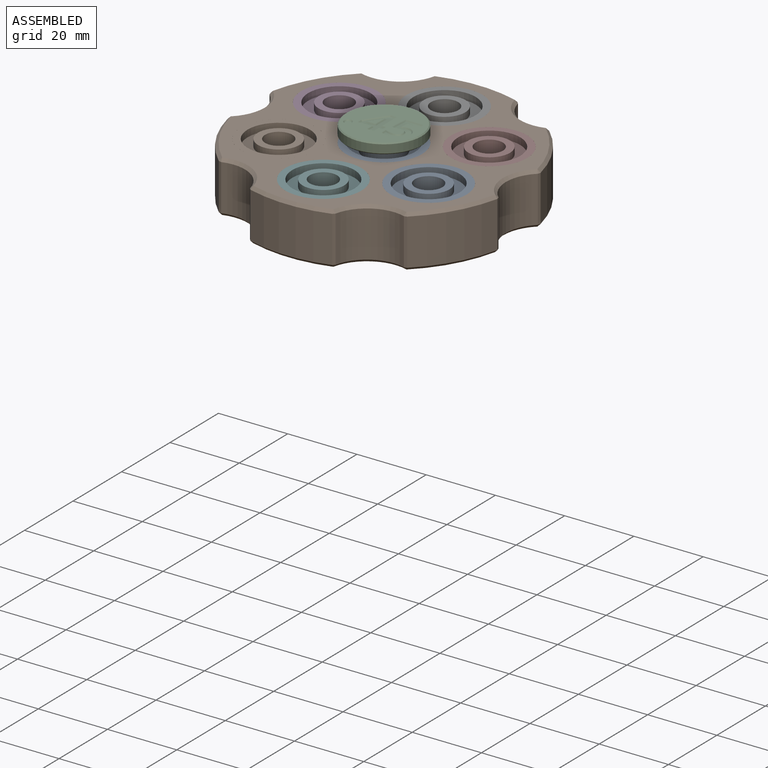
[diagram: assembled view]
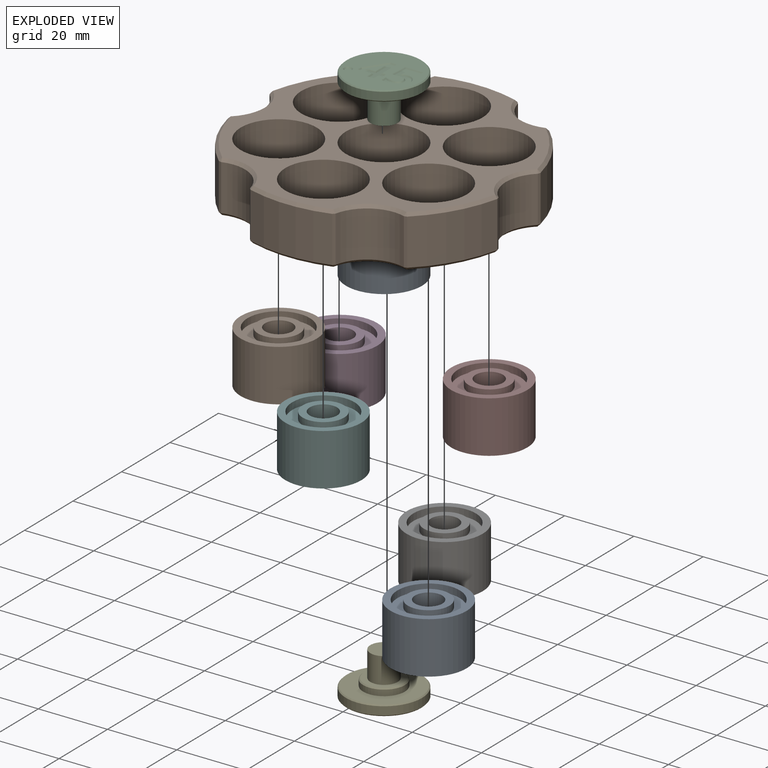
[diagram: exploded view]
GUIDED TOUR — MATED ASSEMBLY (Onshape document 44c54bfcdeca1c4b08606465, AutoMate assembly 44c54bfcdeca1c4b08606465_a4b817ca77fc673c21755fd8_5babd0ef32a0973edb12c5f9_default)

This assembly has 10 components, labeled P0..P9 below (a component is one placed occurrence of a part; the same part can appear more than once), held together by 9 mates. A mate is a constraint between two components; its type names the relative motion it leaves free:
  FASTENED — locks the two components together rigidly (no relative motion),
  REVOLUTE — leaves rotation about the listed axis free (a hinge).
Axis/direction vectors are unit vectors and 'through' points are millimeter coordinates, both in the assembly's world frame.

MATES
  1. FASTENED "Fastened 2": P1 <-> P9, direction (0.000, 0.000, -1.000) through (-76.33, -23.17, 4.27) mm
  2. FASTENED "Fastened 8": P4 <-> P2, direction (0.000, 0.000, 1.000) through (-54.68, -10.67, 4.27) mm
  3. FASTENED "Fastened 1": P3 <-> P9, direction (0.000, 0.000, -1.000) through (-76.33, 1.83, 4.27) mm
  4. FASTENED "Fastened 4": P8 <-> P9, direction (0.000, 0.000, -1.000) through (-33.03, -23.17, 4.27) mm
  5. FASTENED "Fastened 5": P7 <-> P9, direction (0.000, 0.000, -1.000) through (-33.03, 1.83, 4.27) mm
  6. REVOLUTE "Revolute 1": P9 <-> P0, axis (0.000, 0.000, -1.000) through (-54.68, -10.67, 4.27) mm
  7. FASTENED "Fastened 7": P2 <-> P0, direction (0.000, 0.000, -1.000) through (-54.68, -10.67, 4.27) mm
  8. FASTENED "Fastened 6": P6 <-> P9, direction (0.000, 0.000, -1.000) through (-54.68, 14.33, 4.27) mm
  9. FASTENED "Fastened 3": P5 <-> P9, direction (0.000, 0.000, -1.000) through (-54.68, -35.67, 4.27) mm

ASSEMBLY ORDER
  1. P9 — the base component [order heuristic]
  2. P0 [order heuristic]
  3. P1 [order heuristic]
  4. P3 [order heuristic]
  5. P5 [order heuristic]
  6. P6 [order heuristic]
  7. P7 [order heuristic]
  8. P8 [order heuristic]
  9. P2 [order heuristic]
  10. P4 [order heuristic]
Order-tag legend:
  [order heuristic] — this assembly is geometrically interlocked (no collision-free removal order exists), so components are listed in mate-graph order; insertion feasibility is not verified.

Of the 10 components, 7 carry the full construction recipe — the FeatureScript program that regenerates the part's solid from scratch; the rest are supplied as boundary geometry only.
Each toured component is shown spotlighted twice — in the assembled view, then in the exploded view, where a leader line traces a displaced component back to its assembled socket (saturated green if recipe-attached, orange if geometry-only; every other component desaturated gray) — followed by its recipe or geometry summary and the mates that hold it.
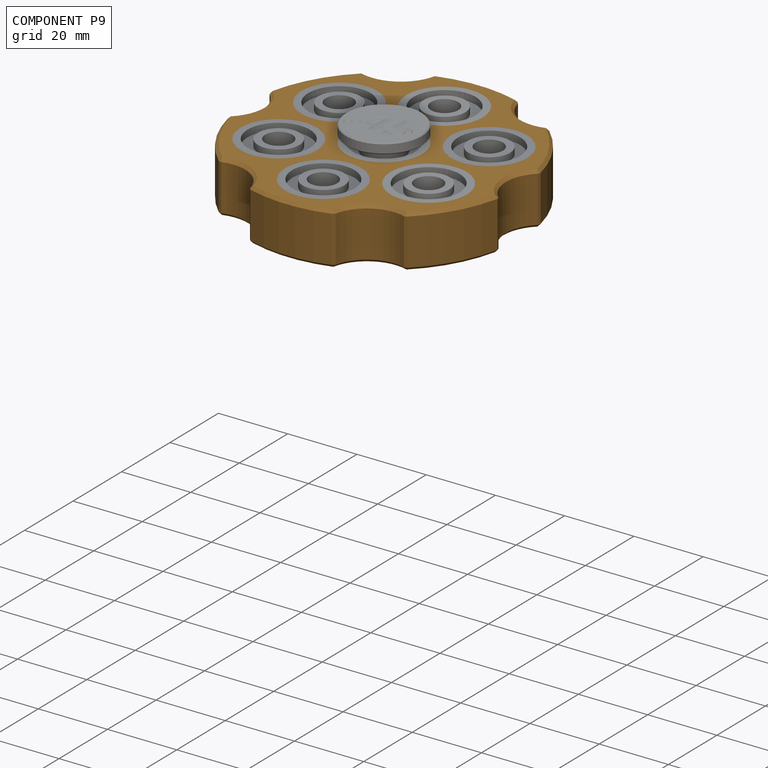
[diagram: component P9 — assembled]
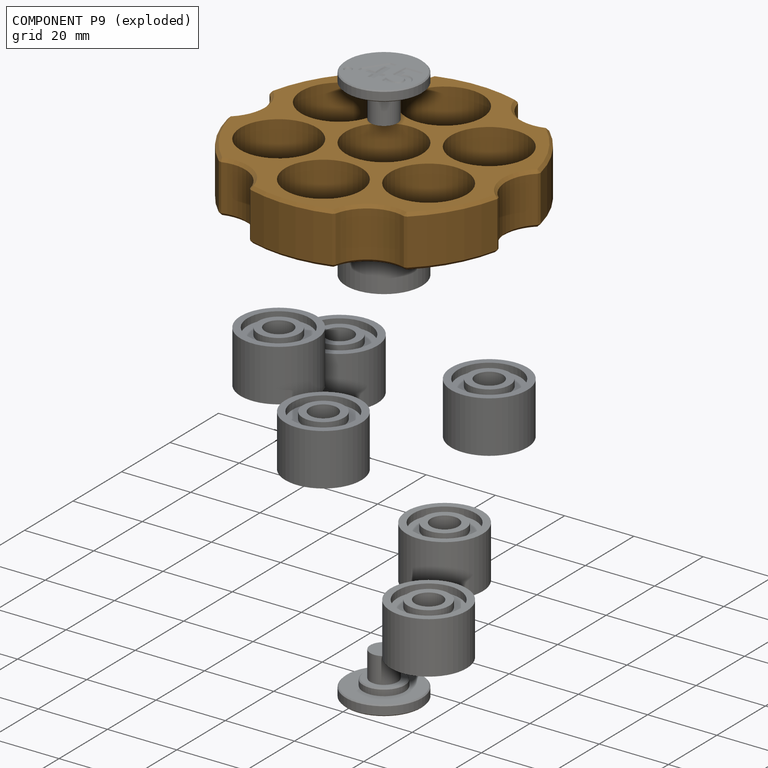
[diagram: component P9 — exploded]
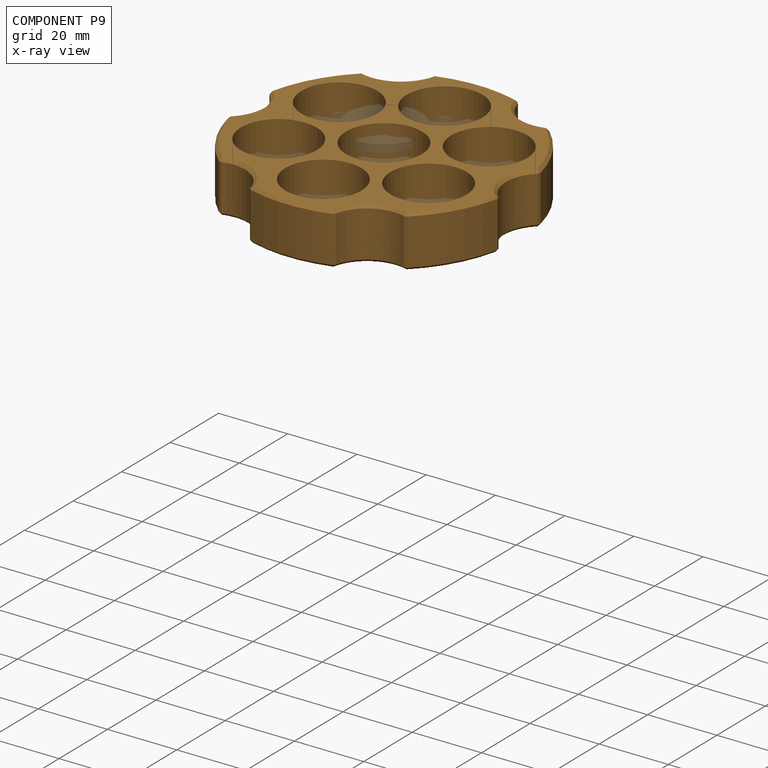
[diagram: component P9 — x-ray view]
COMPONENT P9 — geometry summary (no construction recipe available for this part):
  bounding box: 80.0 x 78.0 x 15.0 mm
  B-rep topology: 1 solid, 81 faces, 330 edges
  volume: 30258 mm^3 (32% of its bounding box)
  symmetry: 2-fold rotationally symmetric about the x axis; 2-fold rotationally symmetric about the y axis; 6-fold rotationally symmetric about the z axis; mirror-symmetric across its x mid-plane, y mid-plane, z mid-plane
Held by: FASTENED mate "Fastened 2" to P1; FASTENED mate "Fastened 1" to P3; FASTENED mate "Fastened 4" to P8; FASTENED mate "Fastened 5" to P7; REVOLUTE mate "Revolute 1" to P0; FASTENED mate "Fastened 6" to P6; FASTENED mate "Fastened 3" to P5.
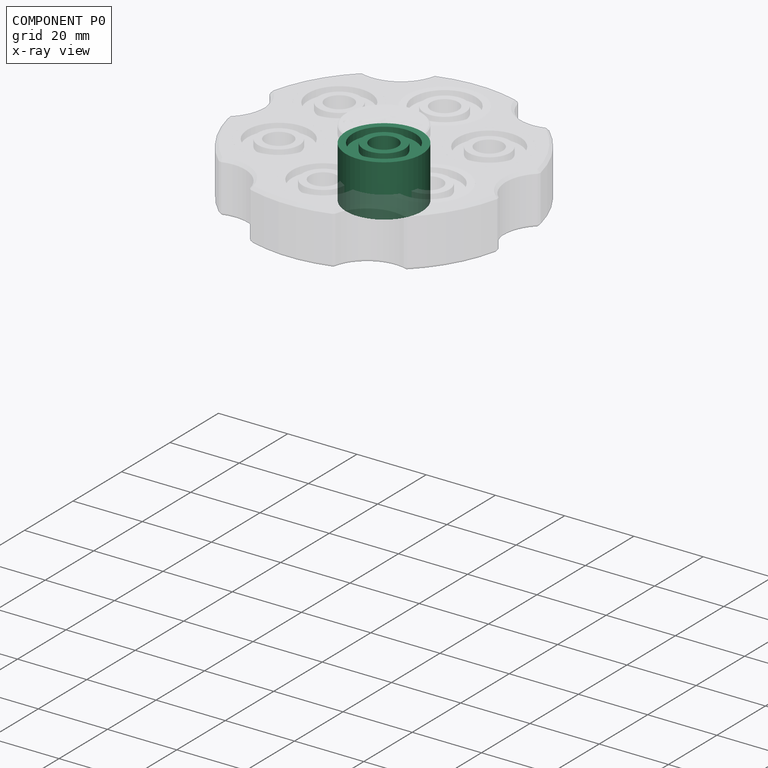
[diagram: component P0 — x-ray view]
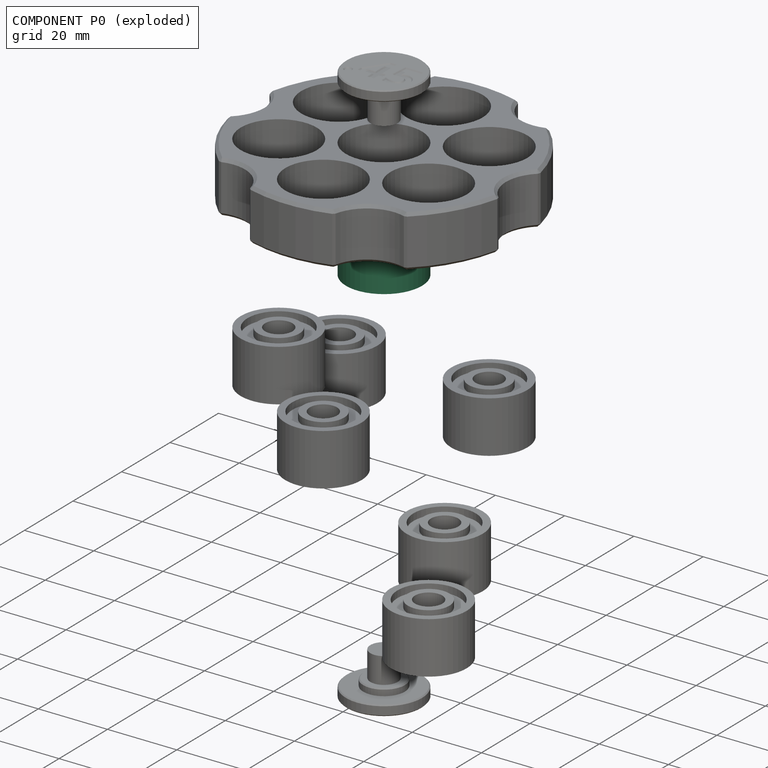
[diagram: component P0 — exploded]
COMPONENT P0 — recipe-attached (CADFS 00522464, mesh-verified: the recipe's output STEP matches this component's geometry to below the mesh-comparison resolution (tessellation chordal tolerance ~0.0518 mm)).
Held by: REVOLUTE mate "Revolute 1" to P9; FASTENED mate "Fastened 7" to P2.
Construction recipe (FeatureScript — the CAD program that rebuilds this solid; sketch coordinates are in the units given by the * unit suffixes, e.g. mm):

FeatureScript 1511;
import(path : "onshape/std/geometry.fs", version : "1511.0");
import(path : "onshape/std/common.fs", version : "1511.0");
const mm = millimeter;
const VERTEX = EntityType.VERTEX;
const EDGE = EntityType.EDGE;
const FACE = EntityType.FACE;
const BODY = EntityType.BODY;
function v(x, y){return vector(x, y);}
function OD(order){return orderDisambiguation(order);}
function OSD(set){return originalSetDisambiguation(set);}
function TD(topology){return topologyDisambiguation(topology);}
function TDD(query){return trueDependencyDisambiguation(query);}
function sQuery(a, b, c) {return sketchEntityQuery(a, b, c);}

annotation { "Feature Type Name" : "Feature", "Feature Type Description" : "" }
export const myFeature = defineFeature(function(context is Context, id is Id, definition is map)
    precondition{}
    {
        {
            var Q0;
            Q0=qCreatedBy(makeId("Front.planeOp"),FACE);
            var sketch = newSketch(context, id + "F0", { "sketchPlane" : qUnion([Q0])});
            skLineSegment(sketch, "E0.bottom", {"start": v(0, -7.5) * mm, "end": v(-6, -7.5) * mm});
            skLineSegment(sketch, "E0.top", {"start": v(-3.95, 7.5) * mm, "end": v(-6, 7.5) * mm});
            skLineSegment(sketch, "E0.left", {"start": v(0, -7.5) * mm, "end": v(0, 7.5) * mm, "construction": true});
            skLineSegment(sketch, "E0.right", {"start": v(-11, -7.5) * mm, "end": v(-11, 7.5) * mm});
            skLineSegment(sketch, "E1.bottom", {"start": v(-11, 7.5) * mm, "end": v(-9, 7.5) * mm});
            skLineSegment(sketch, "E1.left", {"start": v(-11, 7.5) * mm, "end": v(-11, 5.5) * mm});
            skLineSegment(sketch, "E1.right", {"start": v(-9, 7.5) * mm, "end": v(-9, 5.5) * mm});
            skLineSegment(sketch, "E2.left", {"start": v(-3.95, 7.5) * mm, "end": v(-3.95, 5.5) * mm});
            skLineSegment(sketch, "E2.right", {"start": v(-6, 7.5) * mm, "end": v(-6, 5.5) * mm});
            skLineSegment(sketch, "E3", {"start": v(-9, 5.5) * mm, "end": v(-6, 5.5) * mm});
            skLineSegment(sketch, "E4", {"start": v(-9, -5.5) * mm, "end": v(-9, -7.5) * mm});
            skLineSegment(sketch, "E5", {"start": v(-6, -5.5) * mm, "end": v(-6, -7.5) * mm});
            skLineSegment(sketch, "E6", {"start": v(-3.95, 5.5) * mm, "end": v(-3.95, -7.5) * mm});
            skPoint(sketch, "E7", {"position": v(-9, -5.5) * mm});
            skPoint(sketch, "E8", {"position": v(-6, -5.5) * mm});
            skLineSegment(sketch, "E9", {"start": v(-6, -5.5) * mm, "end": v(-9, -5.5) * mm});
            skLineSegment(sketch, "E10.trimOffspring", {"start": v(-9, 7.5) * mm, "end": v(-11, 7.5) * mm});
            skLineSegment(sketch, "E11.trimOffspring", {"start": v(-9, -7.5) * mm, "end": v(-11, -7.5) * mm});
            skPoint(sketch, "E12.orphan", {"position": v(-3.95, -5.5) * mm});
            skLineSegment(sketch, "E13", {"start": v(-11, 5.5) * mm, "end": v(-3.95, 5.5) * mm, "construction": true});
            skLineSegment(sketch, "E14", {"start": v(-3.95, -5.5) * mm, "end": v(-11, -5.5) * mm, "construction": true});
            skPoint(sketch, "E15", {"position": v(0, 0) * mm});
            skSolve(sketch);
        }
        {
            var Q0;
            Q0=makeQuery(id+"F0.imprint","IMPRINT",FACE,{"disambiguationData":[TD([[makeQuery(id+"F0.imprint","IMPRINT",EDGE,{"derivedFrom":sQuery(id+"F0.wireOp",EDGE,"E0.top")}),1.0]])]});
            var Q1;
            Q1=sQuery(id+"F0.wireOp",EDGE,"E0.left");
            revolve(context, id + "F1", {"entities" : qUnion([Q0]), "axis" : qUnion([Q1]), "revolveType" : RevolveType.FULL});
        }
    });
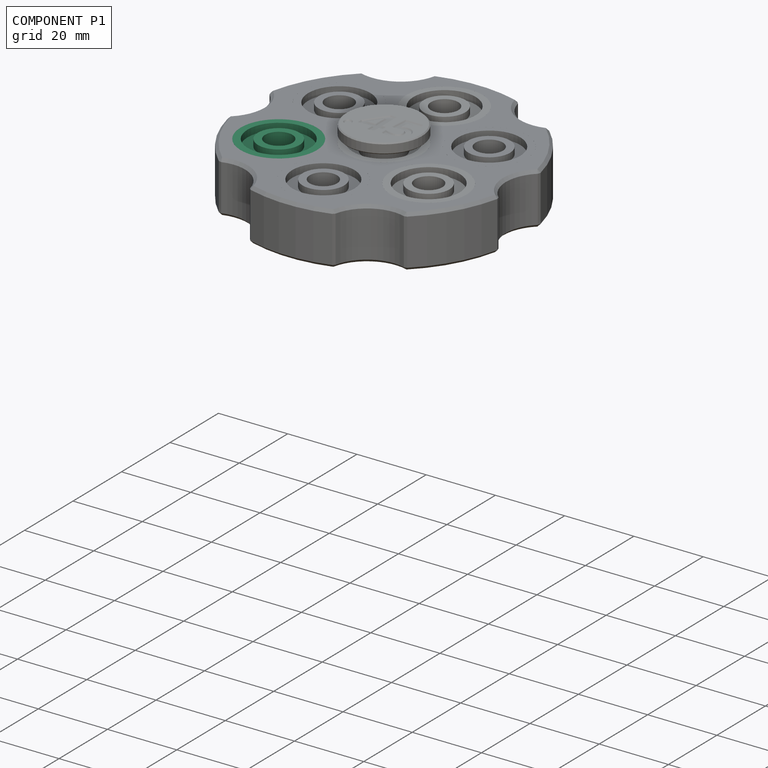
[diagram: component P1 — assembled]
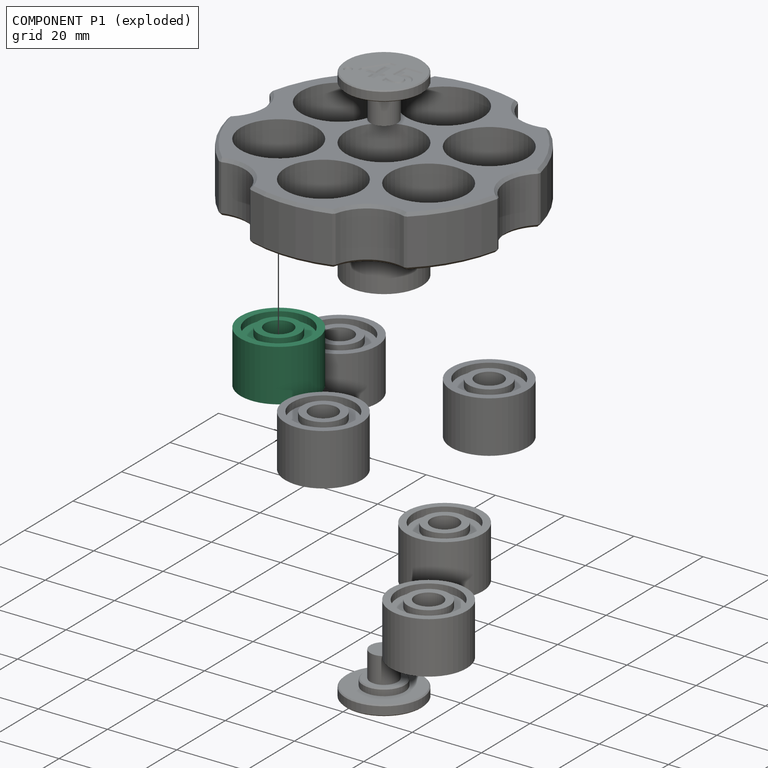
[diagram: component P1 — exploded]
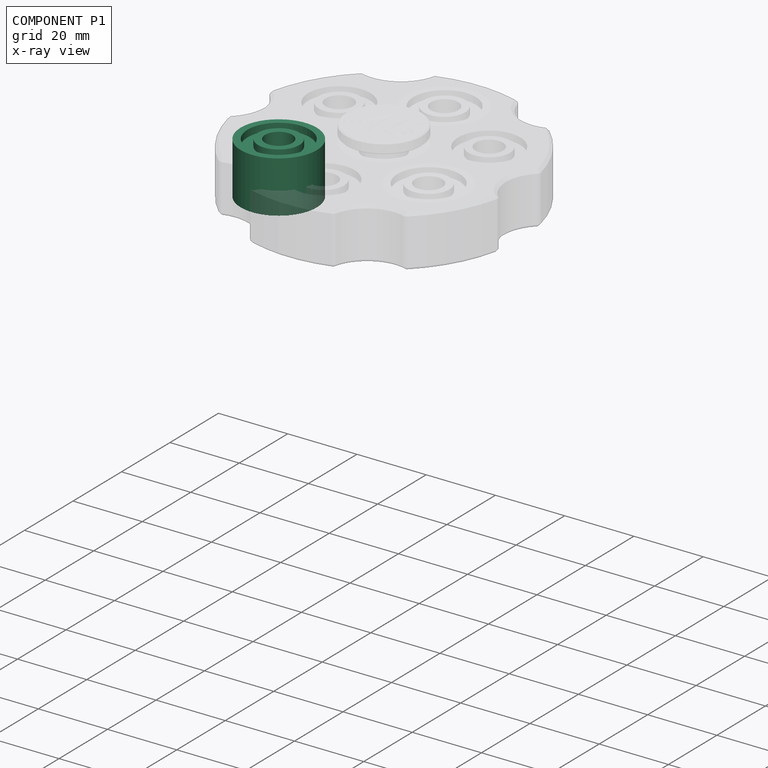
[diagram: component P1 — x-ray view]
COMPONENT P1 — recipe-attached (CADFS 00522464, mesh-verified: the recipe's output STEP matches this component's geometry to below the mesh-comparison resolution (tessellation chordal tolerance ~0.0518 mm)).
Held by: FASTENED mate "Fastened 2" to P9.
Construction recipe (FeatureScript — the CAD program that rebuilds this solid; sketch coordinates are in the units given by the * unit suffixes, e.g. mm):

FeatureScript 1511;
import(path : "onshape/std/geometry.fs", version : "1511.0");
import(path : "onshape/std/common.fs", version : "1511.0");
const mm = millimeter;
const VERTEX = EntityType.VERTEX;
const EDGE = EntityType.EDGE;
const FACE = EntityType.FACE;
const BODY = EntityType.BODY;
function v(x, y){return vector(x, y);}
function OD(order){return orderDisambiguation(order);}
function OSD(set){return originalSetDisambiguation(set);}
function TD(topology){return topologyDisambiguation(topology);}
function TDD(query){return trueDependencyDisambiguation(query);}
function sQuery(a, b, c) {return sketchEntityQuery(a, b, c);}

annotation { "Feature Type Name" : "Feature", "Feature Type Description" : "" }
export const myFeature = defineFeature(function(context is Context, id is Id, definition is map)
    precondition{}
    {
        {
            var Q0;
            Q0=qCreatedBy(makeId("Front.planeOp"),FACE);
            var sketch = newSketch(context, id + "F0", { "sketchPlane" : qUnion([Q0])});
            skLineSegment(sketch, "E0.bottom", {"start": v(0, -7.5) * mm, "end": v(-6, -7.5) * mm});
            skLineSegment(sketch, "E0.top", {"start": v(-3.95, 7.5) * mm, "end": v(-6, 7.5) * mm});
            skLineSegment(sketch, "E0.left", {"start": v(0, -7.5) * mm, "end": v(0, 7.5) * mm, "construction": true});
            skLineSegment(sketch, "E0.right", {"start": v(-11, -7.5) * mm, "end": v(-11, 7.5) * mm});
            skLineSegment(sketch, "E1.bottom", {"start": v(-11, 7.5) * mm, "end": v(-9, 7.5) * mm});
            skLineSegment(sketch, "E1.left", {"start": v(-11, 7.5) * mm, "end": v(-11, 5.5) * mm});
            skLineSegment(sketch, "E1.right", {"start": v(-9, 7.5) * mm, "end": v(-9, 5.5) * mm});
            skLineSegment(sketch, "E2.left", {"start": v(-3.95, 7.5) * mm, "end": v(-3.95, 5.5) * mm});
            skLineSegment(sketch, "E2.right", {"start": v(-6, 7.5) * mm, "end": v(-6, 5.5) * mm});
            skLineSegment(sketch, "E3", {"start": v(-9, 5.5) * mm, "end": v(-6, 5.5) * mm});
            skLineSegment(sketch, "E4", {"start": v(-9, -5.5) * mm, "end": v(-9, -7.5) * mm});
            skLineSegment(sketch, "E5", {"start": v(-6, -5.5) * mm, "end": v(-6, -7.5) * mm});
            skLineSegment(sketch, "E6", {"start": v(-3.95, 5.5) * mm, "end": v(-3.95, -7.5) * mm});
            skPoint(sketch, "E7", {"position": v(-9, -5.5) * mm});
            skPoint(sketch, "E8", {"position": v(-6, -5.5) * mm});
            skLineSegment(sketch, "E9", {"start": v(-6, -5.5) * mm, "end": v(-9, -5.5) * mm});
            skLineSegment(sketch, "E10.trimOffspring", {"start": v(-9, 7.5) * mm, "end": v(-11, 7.5) * mm});
            skLineSegment(sketch, "E11.trimOffspring", {"start": v(-9, -7.5) * mm, "end": v(-11, -7.5) * mm});
            skPoint(sketch, "E12.orphan", {"position": v(-3.95, -5.5) * mm});
            skLineSegment(sketch, "E13", {"start": v(-11, 5.5) * mm, "end": v(-3.95, 5.5) * mm, "construction": true});
            skLineSegment(sketch, "E14", {"start": v(-3.95, -5.5) * mm, "end": v(-11, -5.5) * mm, "construction": true});
            skPoint(sketch, "E15", {"position": v(0, 0) * mm});
            skSolve(sketch);
        }
        {
            var Q0;
            Q0=makeQuery(id+"F0.imprint","IMPRINT",FACE,{"disambiguationData":[TD([[makeQuery(id+"F0.imprint","IMPRINT",EDGE,{"derivedFrom":sQuery(id+"F0.wireOp",EDGE,"E0.top")}),1.0]])]});
            var Q1;
            Q1=sQuery(id+"F0.wireOp",EDGE,"E0.left");
            revolve(context, id + "F1", {"entities" : qUnion([Q0]), "axis" : qUnion([Q1]), "revolveType" : RevolveType.FULL});
        }
    });
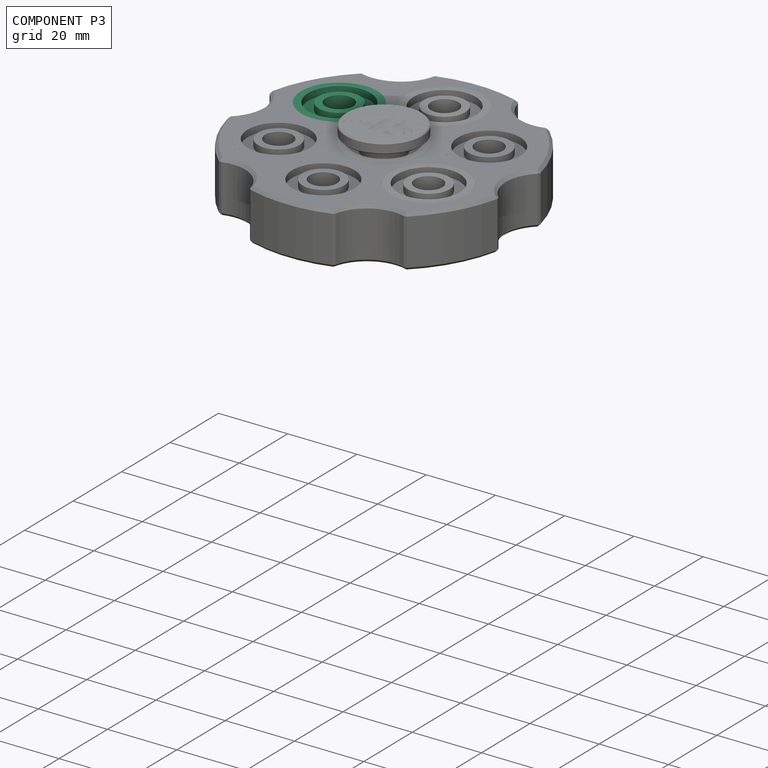
[diagram: component P3 — assembled]
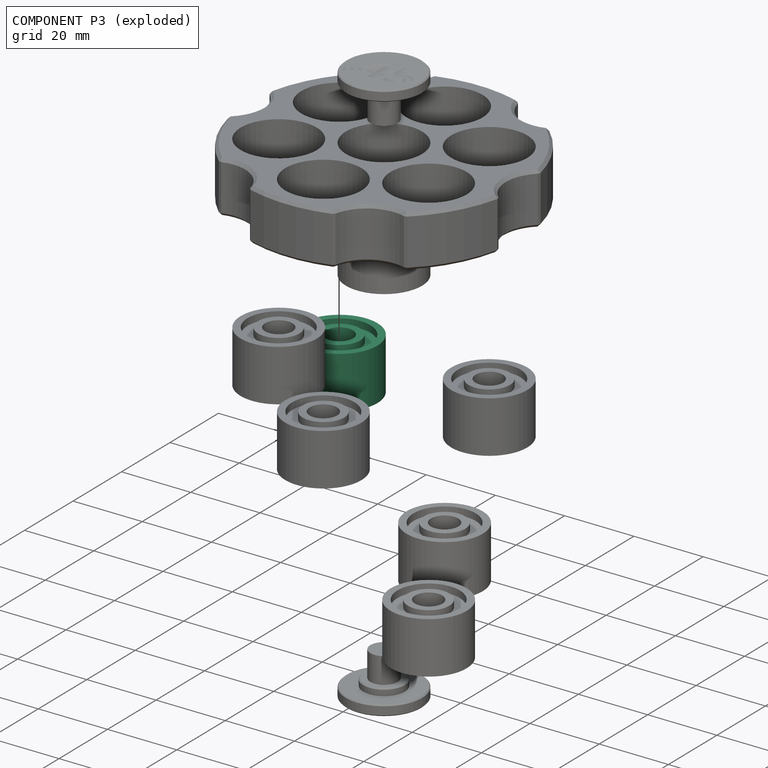
[diagram: component P3 — exploded]
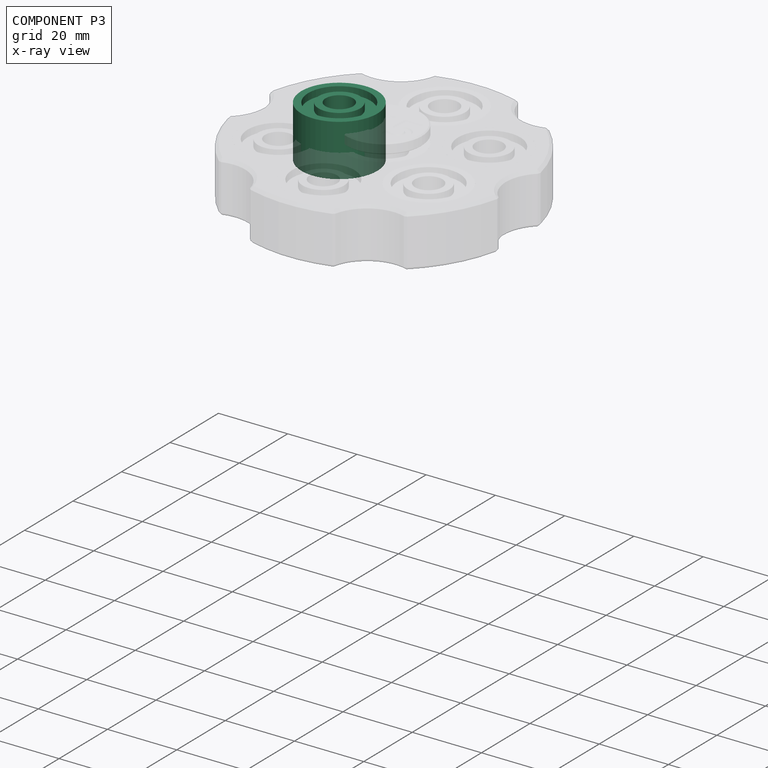
[diagram: component P3 — x-ray view]
COMPONENT P3 — same part as P1 (CADFS 00522464); its construction recipe is shown at P1.
Held by: FASTENED mate "Fastened 1" to P9.
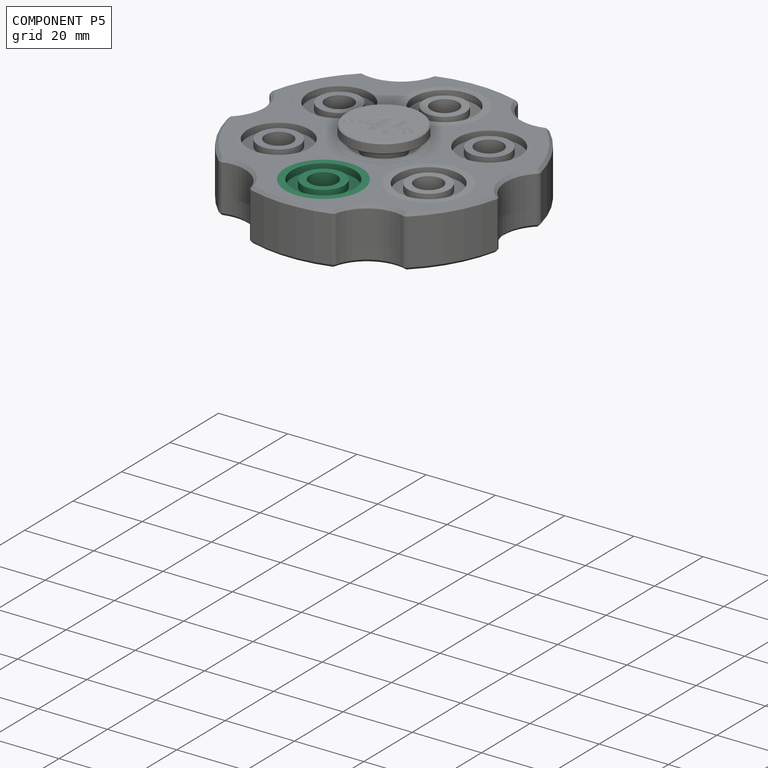
[diagram: component P5 — assembled]
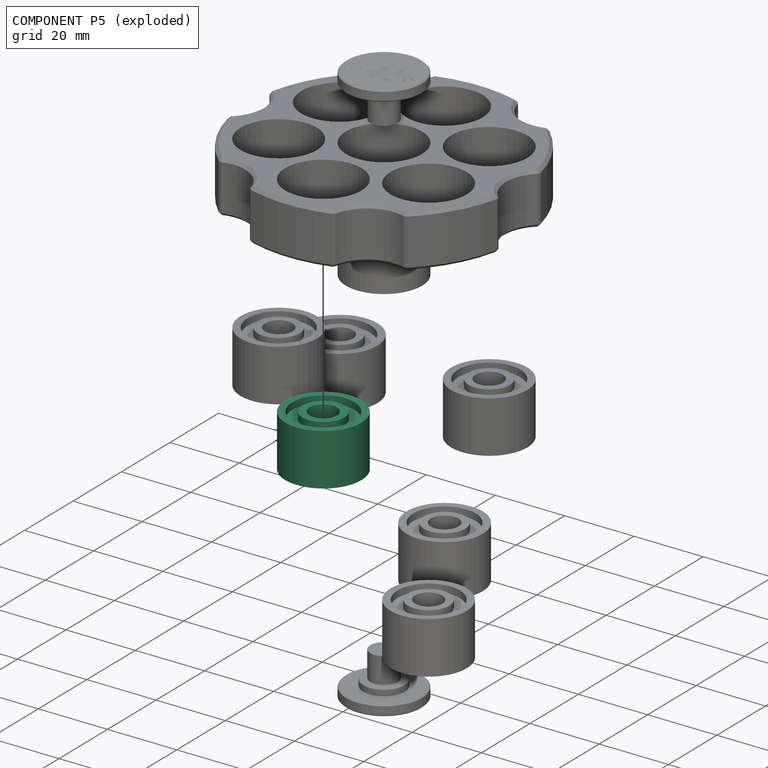
[diagram: component P5 — exploded]
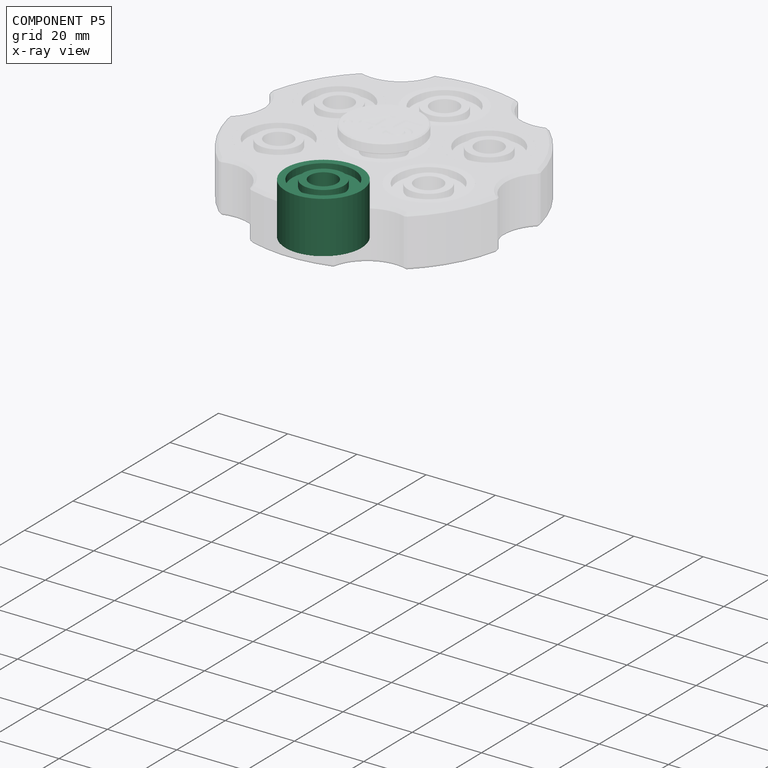
[diagram: component P5 — x-ray view]
COMPONENT P5 — same part as P1 (CADFS 00522464); its construction recipe is shown at P1.
Held by: FASTENED mate "Fastened 3" to P9.
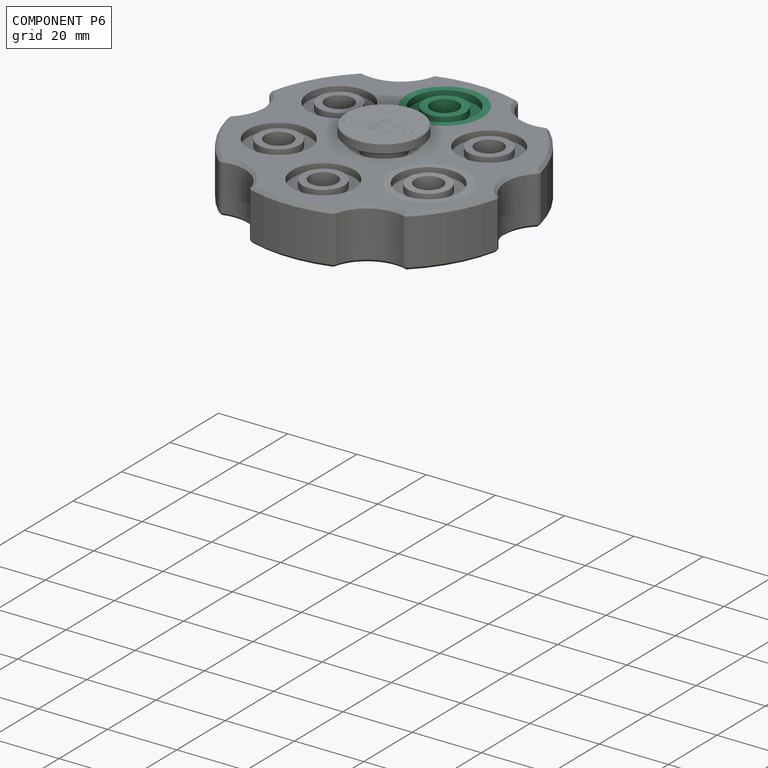
[diagram: component P6 — assembled]
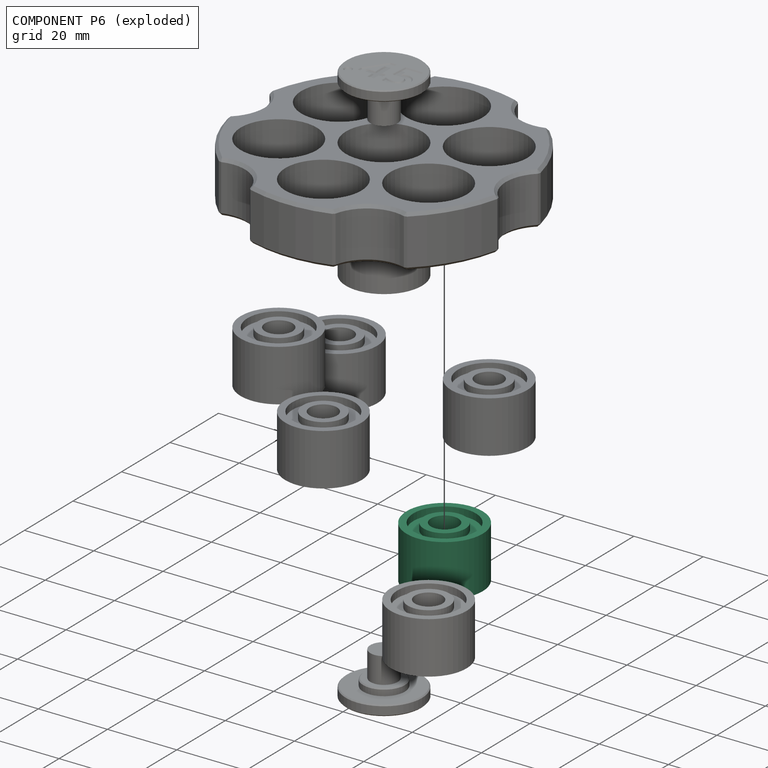
[diagram: component P6 — exploded]
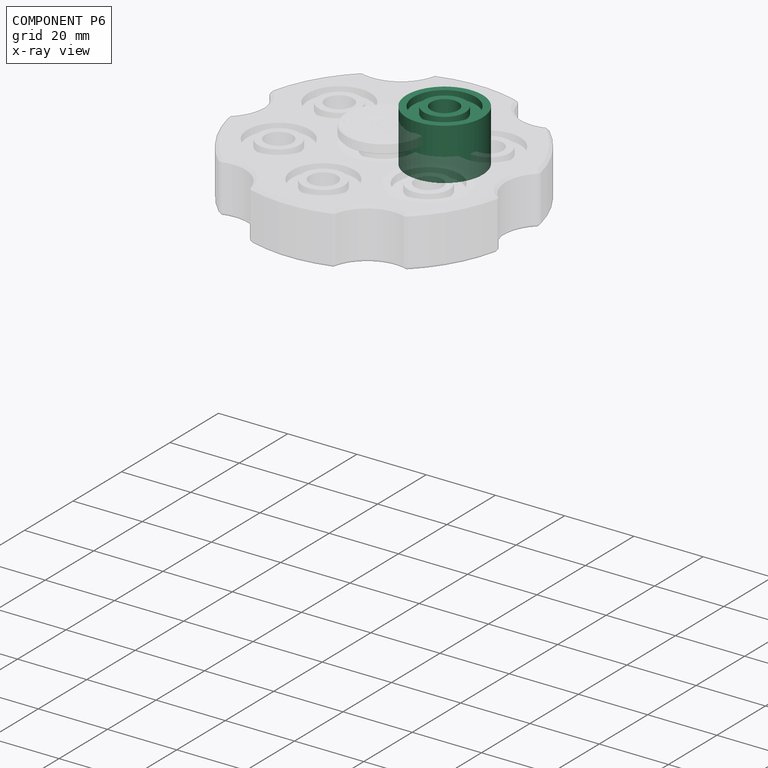
[diagram: component P6 — x-ray view]
COMPONENT P6 — same part as P1 (CADFS 00522464); its construction recipe is shown at P1.
Held by: FASTENED mate "Fastened 6" to P9.
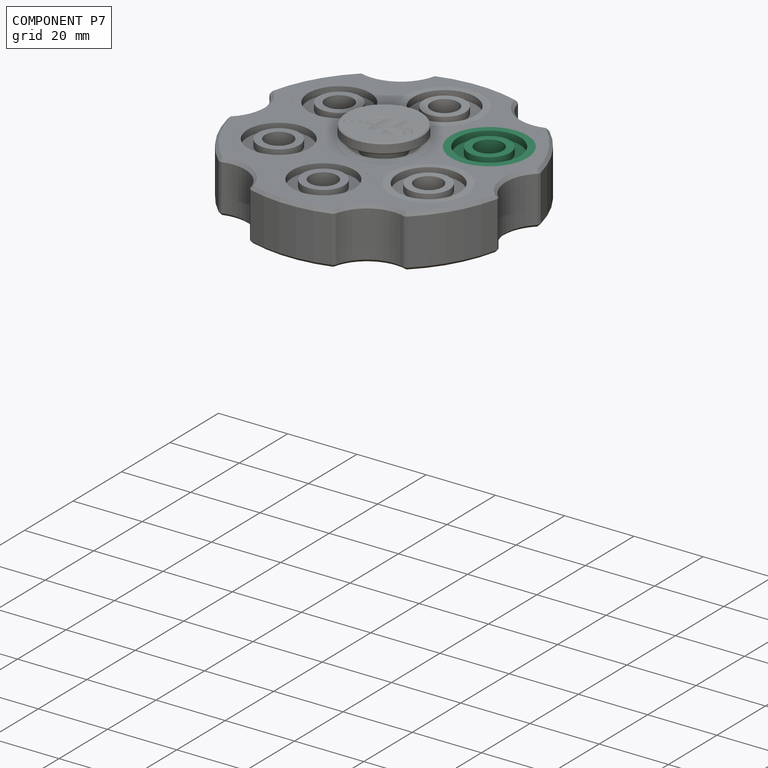
[diagram: component P7 — assembled]
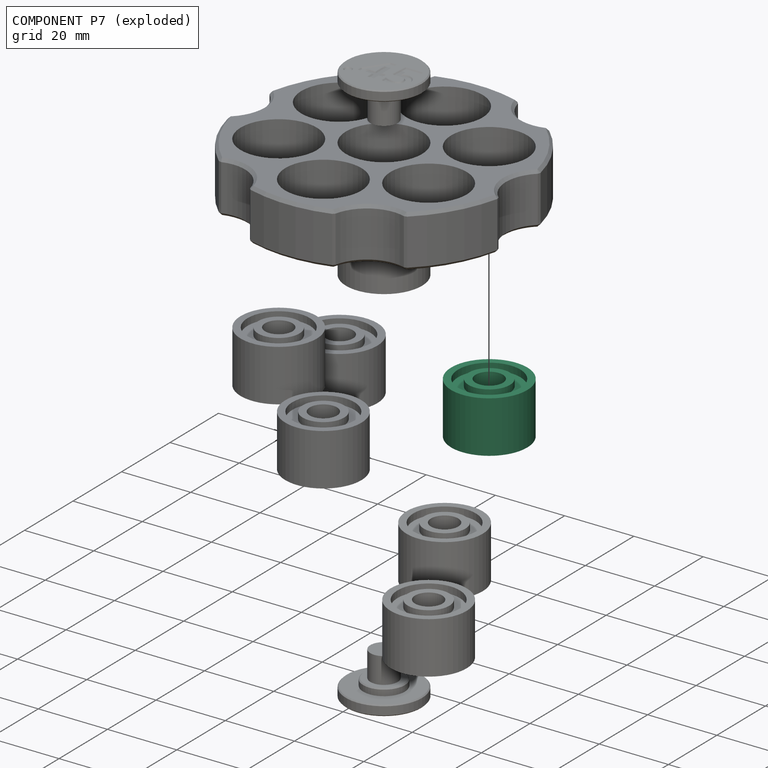
[diagram: component P7 — exploded]
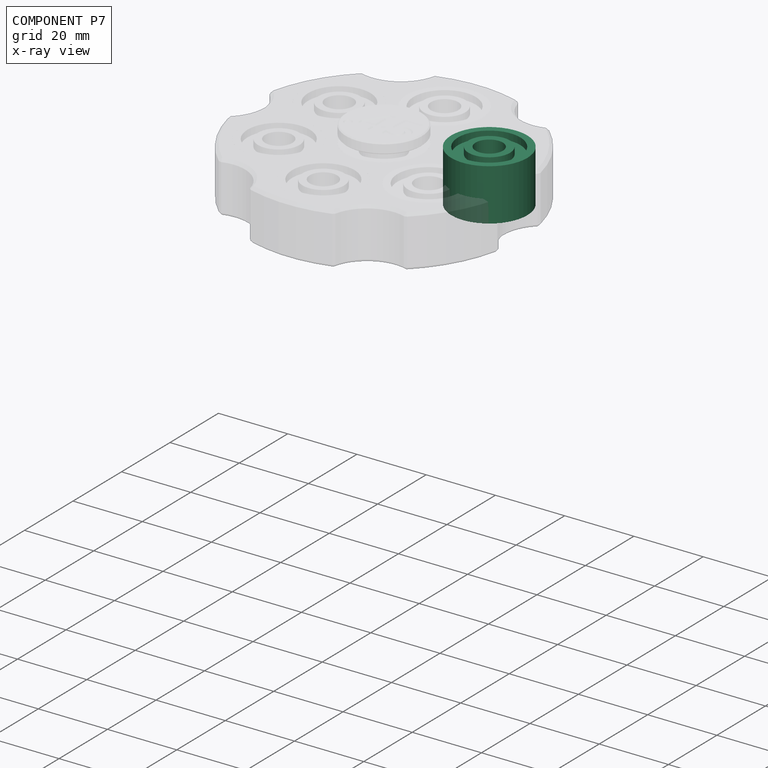
[diagram: component P7 — x-ray view]
COMPONENT P7 — same part as P1 (CADFS 00522464); its construction recipe is shown at P1.
Held by: FASTENED mate "Fastened 5" to P9.
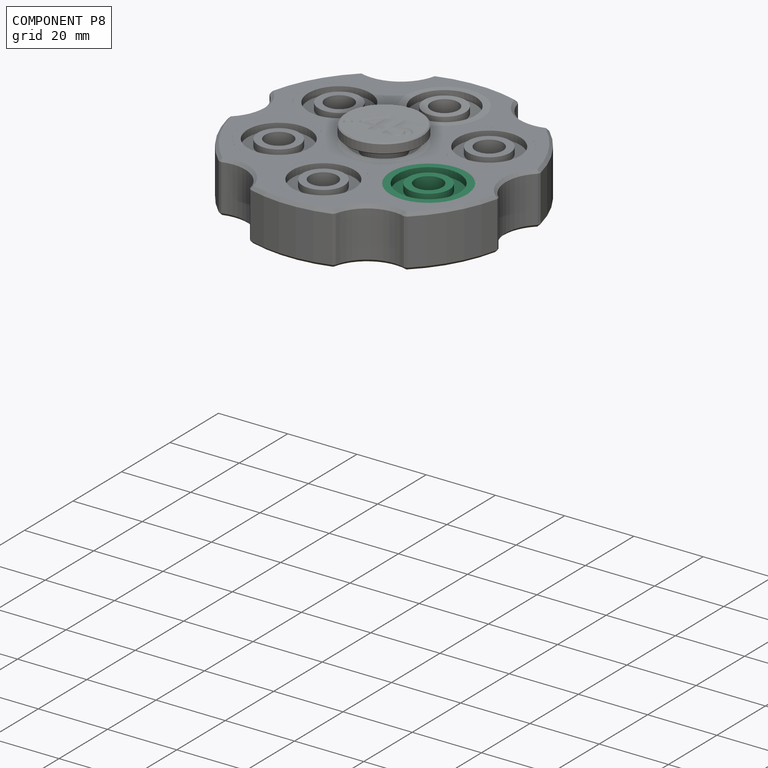
[diagram: component P8 — assembled]
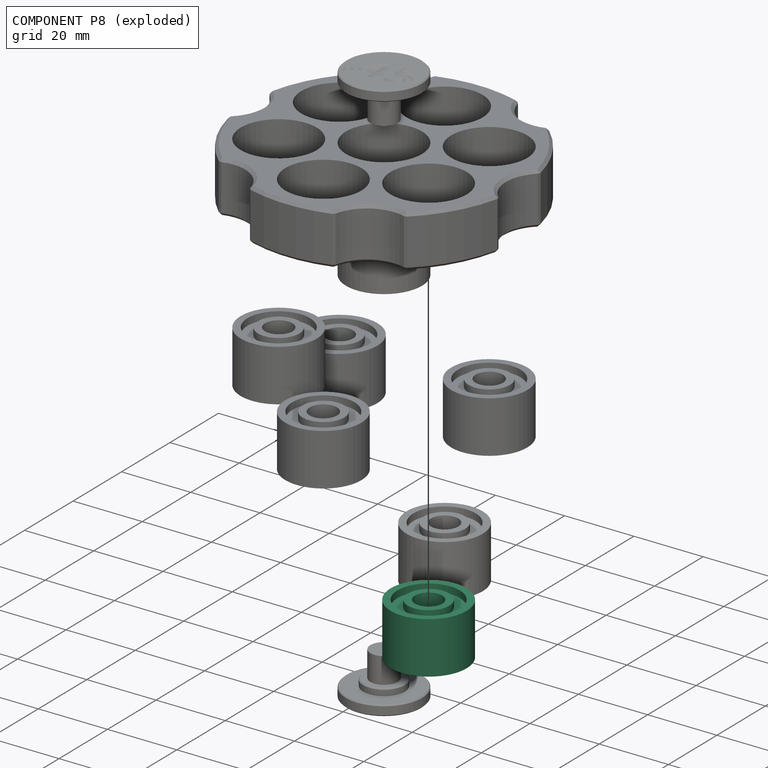
[diagram: component P8 — exploded]
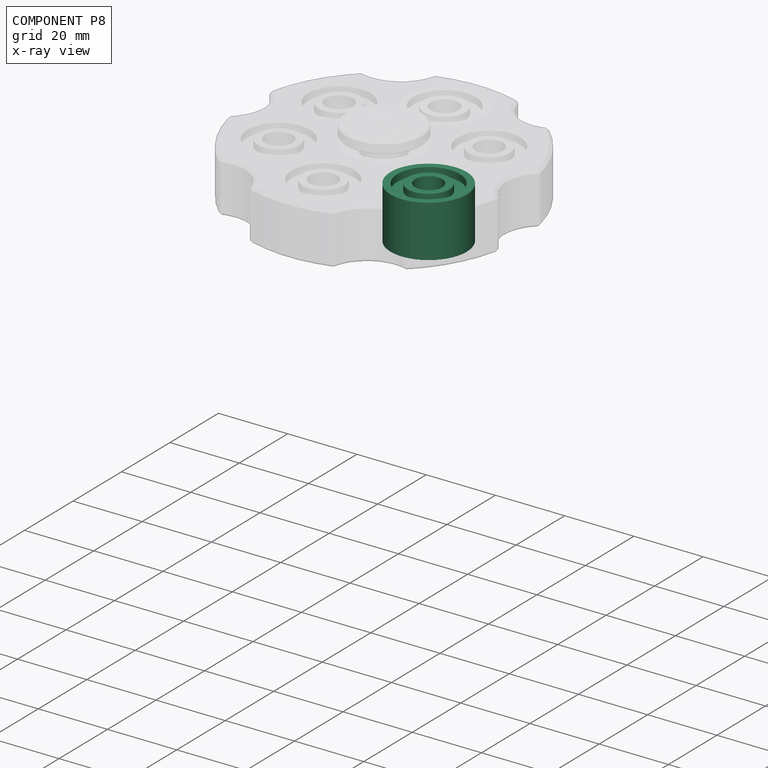
[diagram: component P8 — x-ray view]
COMPONENT P8 — same part as P1 (CADFS 00522464); its construction recipe is shown at P1.
Held by: FASTENED mate "Fastened 4" to P9.
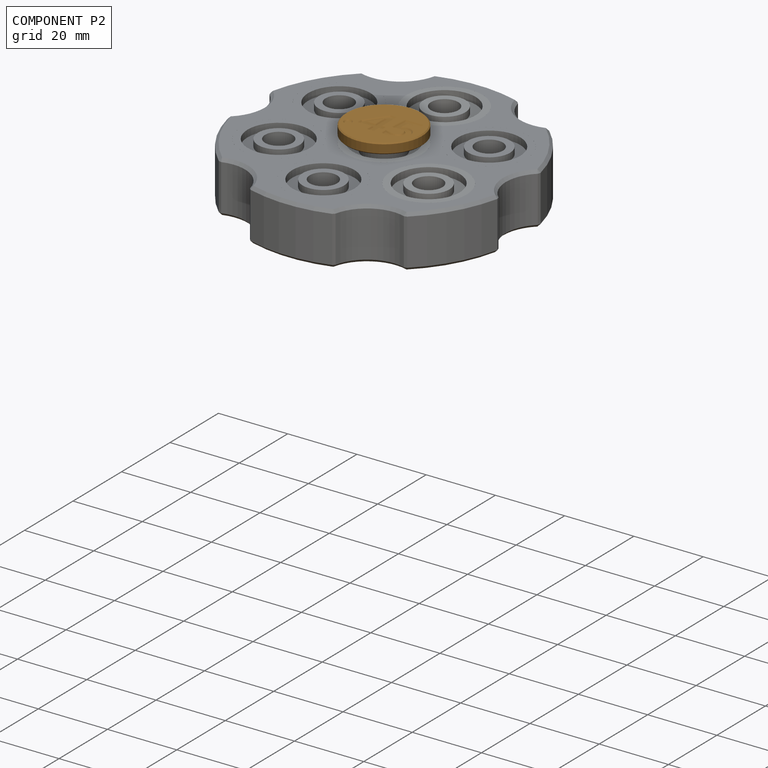
[diagram: component P2 — assembled]
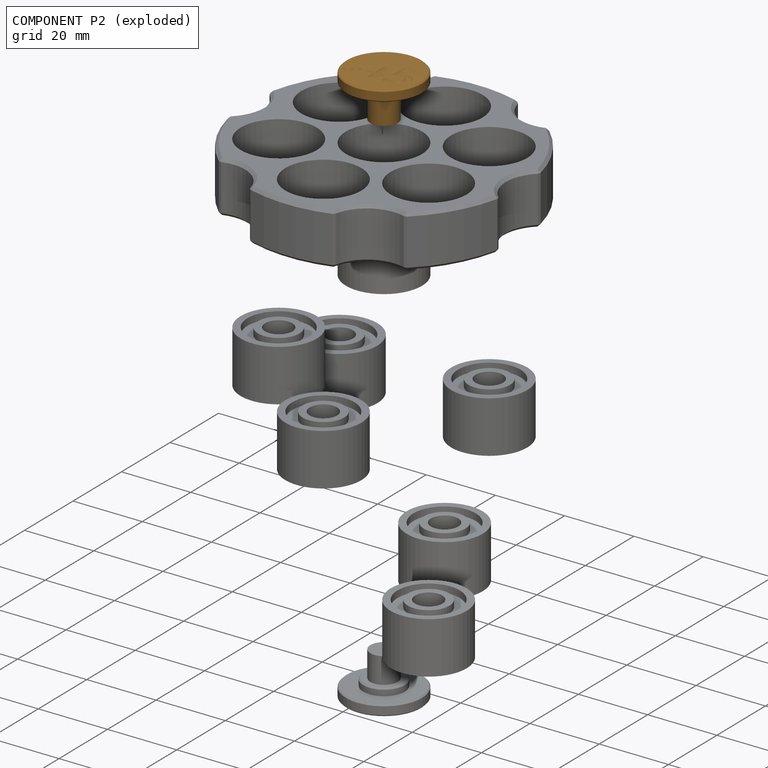
[diagram: component P2 — exploded]
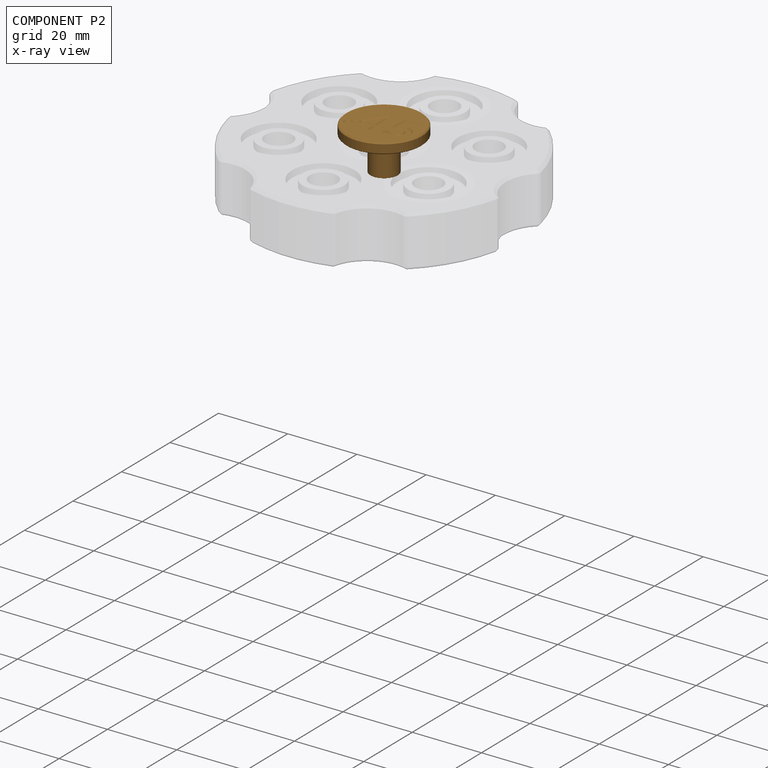
[diagram: component P2 — x-ray view]
COMPONENT P2 — geometry summary (no construction recipe available for this part):
  bounding box: 22.3 x 22.3 x 12.8 mm
  B-rep topology: 1 solid, 60 faces, 306 edges
  volume: 1708 mm^3 (27% of its bounding box)
Held by: FASTENED mate "Fastened 8" to P4; FASTENED mate "Fastened 7" to P0.
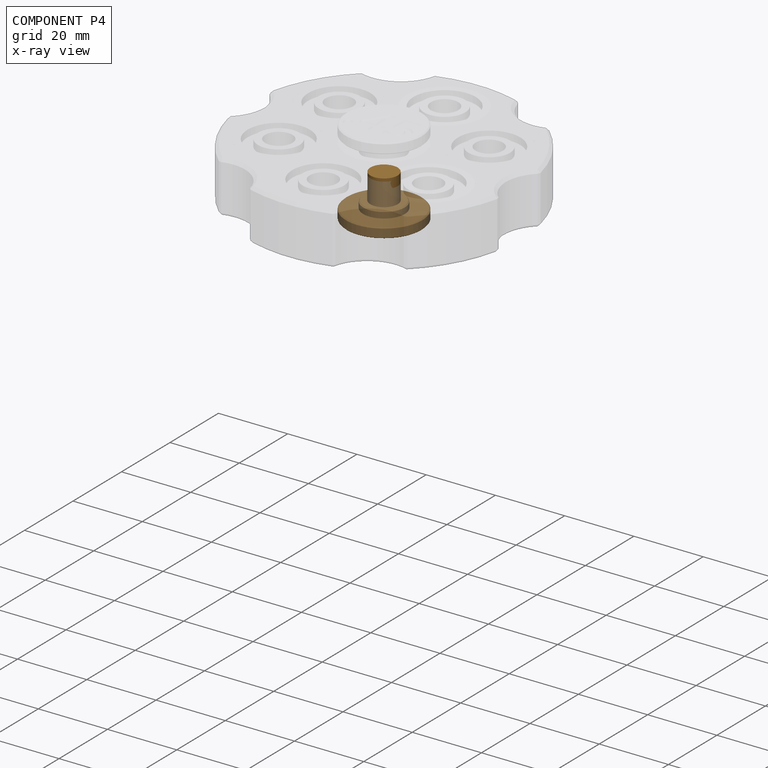
[diagram: component P4 — x-ray view]
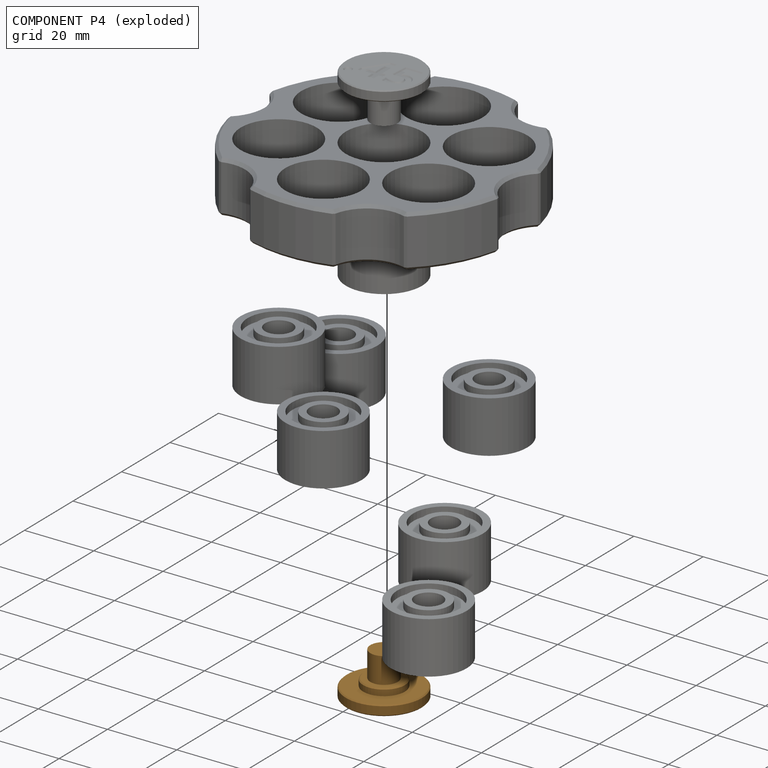
[diagram: component P4 — exploded]
COMPONENT P4 — geometry summary (no construction recipe available for this part):
  bounding box: 22.3 x 22.3 x 12.8 mm
  B-rep topology: 1 solid, 60 faces, 306 edges
  volume: 1708 mm^3 (27% of its bounding box)
Held by: FASTENED mate "Fastened 8" to P2.
PROVENANCE & LICENSES
Assembly (occurrences, transforms, mates, per-part STEP geometry): AutoMate dataset, Zenodo record 7776208, CC0.
Construction recipes: CADFS (HuggingFace VladPyatov/CADFS, CC-BY-4.0, layered over the ABC dataset), FeatureScript reconstruction programs keyed by ABC model id.
Join: ABC meta listings map ABC model id -> Onshape documentId; within a shared document, parts are matched by geometric signature (bounding-box dims + volume at 0.1% relative tolerance, exact B-rep face/solid counts).
Verification: 7 of this assembly's 10 components carry a recipe attachment, and every attachment is mesh-verified: the CADFS STEP and the AutoMate member STEP were compared as meshes in their shared local frame (symmetric sampled-point-to-mesh distance); worst across the 7 attachments: below the mesh-comparison resolution (tessellation chordal tolerance ~0.0518 mm) on a 35 mm part.
Renders: orthographic iso camera (az 35 / el 25); the floor grid conveys scale (grid pitch printed in each image; no ruler). In the exploded view each component is displaced by its stored offset vector: the offsets alone carry the explosion direction (mate normal/axis signs are not orientation cues and do not encode it), and separation distances are assigned per mate-chain, not proportionally to assembly-order depth.
